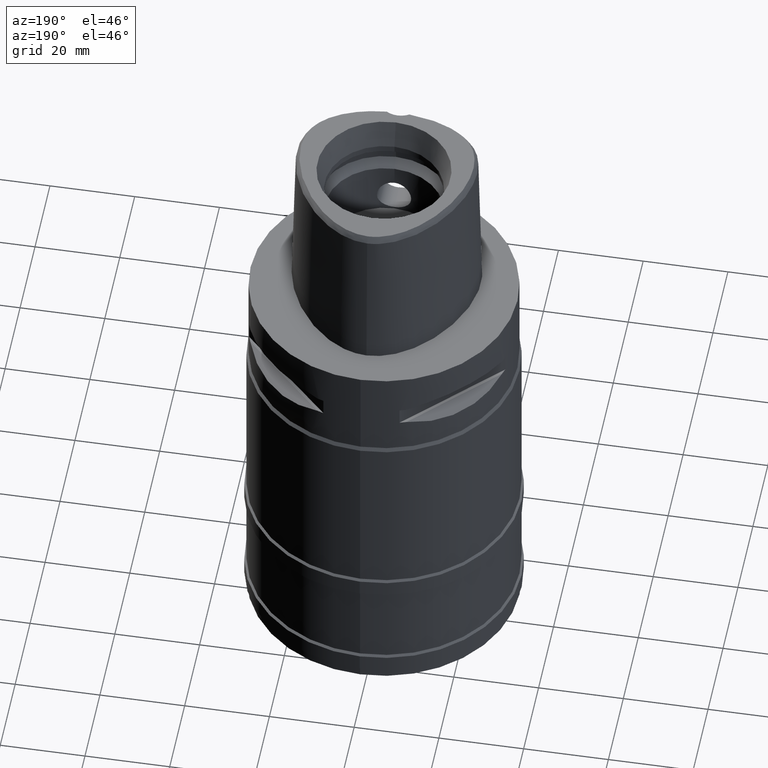
[diagram: clean part render]
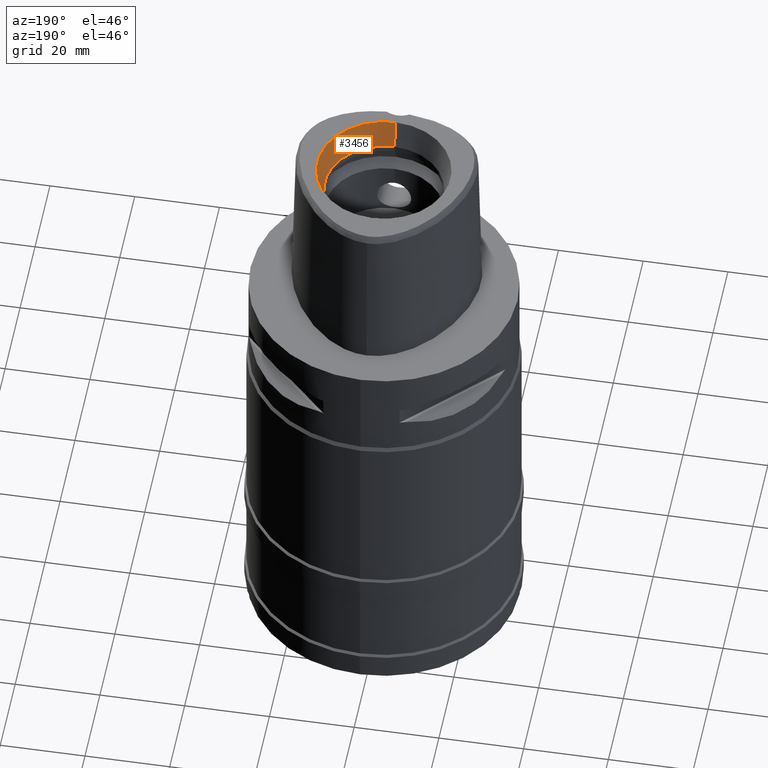
[diagram: same view with one face highlighted and labeled with its STEP entity id]
A machine part, auxiliary view. The second image highlights one B-rep face of the part: STEP entity #3456.
In plain terms, the highlighted conical surface has half-angle 15 deg.
Its self-contained STEP definition (entity closure, byte-faithful):
#126=CARTESIAN_POINT('',(0.E0,0.E0,3.8E1));
#127=DIRECTION('',(0.E0,0.E0,1.E0));
#128=DIRECTION('',(0.E0,-1.E0,0.E0));
#129=AXIS2_PLACEMENT_3D('',#126,#127,#128);
#1382=DIRECTION('',(0.E0,-2.588190451026E-1,9.659258262891E-1));
#1383=VECTOR('',#1382,6.625767554625E0);
#1384=CARTESIAN_POINT('',(0.E0,-1.4E1,3.16E1));
#1385=LINE('',#1384,#1383);
#1389=CARTESIAN_POINT('',(0.E0,0.E0,3.16E1));
#1390=DIRECTION('',(0.E0,0.E0,1.E0));
#1391=DIRECTION('',(0.E0,-1.E0,0.E0));
#1392=AXIS2_PLACEMENT_3D('',#1389,#1390,#1391);
#1397=DIRECTION('',(0.E0,2.588190451026E-1,9.659258262891E-1));
#1398=VECTOR('',#1397,6.625767554625E0);
#1399=CARTESIAN_POINT('',(0.E0,1.4E1,3.16E1));
#1400=LINE('',#1399,#1398);
#1667=CARTESIAN_POINT('',(0.E0,1.571487483156E1,3.8E1));
#1668=CARTESIAN_POINT('',(0.E0,-1.571487483156E1,3.8E1));
#1669=VERTEX_POINT('',#1667);
#1670=VERTEX_POINT('',#1668);
#1843=CARTESIAN_POINT('',(0.E0,-1.4E1,3.16E1));
#1844=VERTEX_POINT('',#1843);
#1845=CARTESIAN_POINT('',(0.E0,1.4E1,3.16E1));
#1846=VERTEX_POINT('',#1845);
#3445=CARTESIAN_POINT('',(0.E0,0.E0,3.48E1));
#3446=DIRECTION('',(0.E0,0.E0,1.E0));
#3447=DIRECTION('',(0.E0,1.E0,0.E0));
#3448=AXIS2_PLACEMENT_3D('',#3445,#3446,#3447);
#3449=CONICAL_SURFACE('',#3448,1.485743741578E1,1.5E1);
#3450=ORIENTED_EDGE('',*,*,#1864,.F.);
#3451=ORIENTED_EDGE('',*,*,#3440,.F.);
#3452=ORIENTED_EDGE('',*,*,#3413,.T.);
#3453=ORIENTED_EDGE('',*,*,#3437,.T.);
#3454=EDGE_LOOP('',(#3450,#3451,#3452,#3453));
#3455=FACE_OUTER_BOUND('',#3454,.F.);
#130=CIRCLE('',#129,1.571487483156E1);
#1393=CIRCLE('',#1392,1.4E1);
#1864=EDGE_CURVE('',#1670,#1669,#130,.T.);
#3413=EDGE_CURVE('',#1844,#1846,#1393,.T.);
#3437=EDGE_CURVE('',#1846,#1669,#1400,.T.);
#3440=EDGE_CURVE('',#1844,#1670,#1385,.T.);
#3456=ADVANCED_FACE('',(#3455),#3449,.F.);